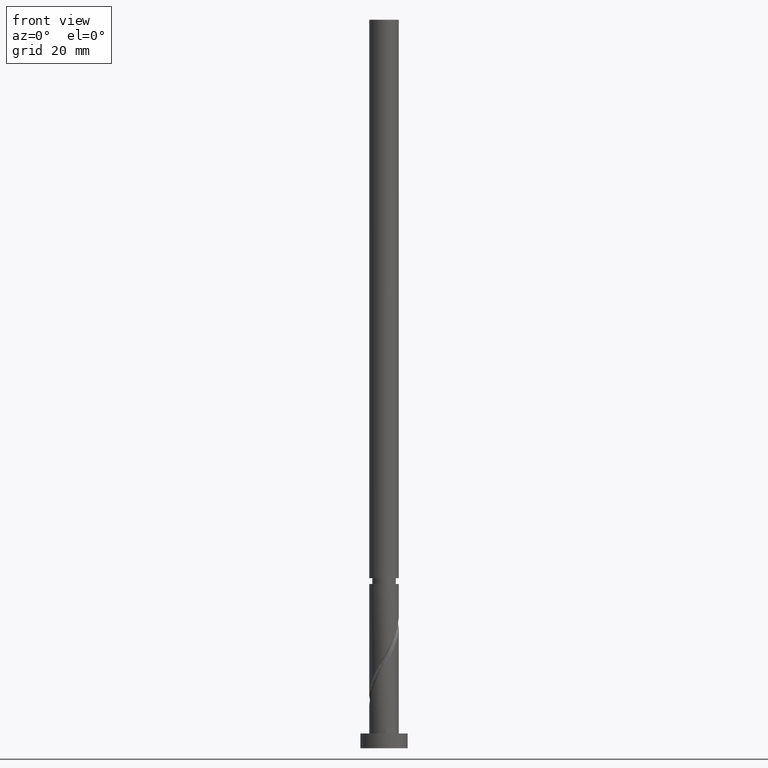
[diagram: clean part render]
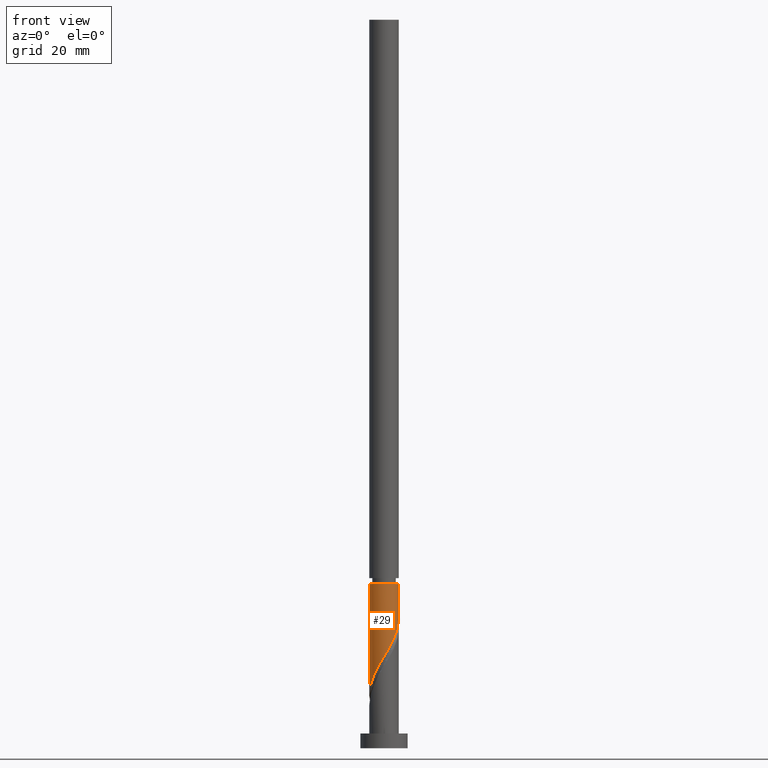
[diagram: same view with one face highlighted and labeled with its STEP entity id]
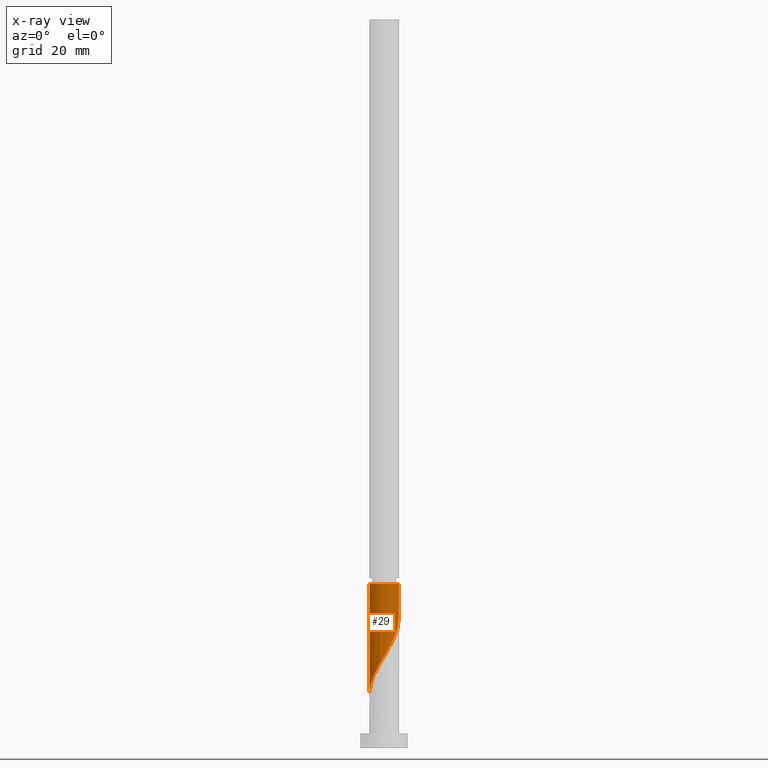
[diagram: x-ray of the same camera — body ghosted, the highlighted face saturated]
A machine part, front view. The second image highlights one B-rep face of the part: STEP entity #29.
The next image is the same camera in x-ray: the body ghosted, the highlighted face saturated — about 0% of this face is hidden behind the body in this view.
In plain terms, the highlighted cylindrical surface (edge-blend (fillet) strip) has radius 5 mm, axis along (-0, -0, -1).
Its self-contained STEP definition (entity closure, byte-faithful):
#1 = CARTESIAN_POINT ( 'NONE',  ( -4.999999999999998224, -2.320957782597394104E-15, 17.97929556936945872 ) ) ;
#15 = VERTEX_POINT ( 'NONE', #122 ) ;
#20 = LINE ( 'NONE', #447, #1578 ) ;
#29 = ADVANCED_FACE ( 'NONE', ( #1684 ), #260, .T. ) ;
#86 = CARTESIAN_POINT ( 'NONE',  ( -0.9949874371066192991, -4.899999999999999467, 29.42977849146339864 ) ) ;
#102 = CARTESIAN_POINT ( 'NONE',  ( 5.000000000000005329, 6.123233995736773185E-16, 55.67977849146339508 ) ) ;
#108 = CARTESIAN_POINT ( 'NONE',  ( -4.846456322308670295, -1.229577616888954728, 20.05477849146339864 ) ) ;
#122 = CARTESIAN_POINT ( 'NONE',  ( 4.999999999999997335, 1.910499010755411195E-15, 44.22929556936944806 ) ) ;
#194 = ORIENTED_EDGE ( 'NONE', *, *, #1432, .T. ) ;
#260 = CYLINDRICAL_SURFACE ( 'NONE', #559, 5.000000000000000000 ) ;
#385 = CARTESIAN_POINT ( 'NONE',  ( 3.210609744079810479, -3.833012532097927139, 36.92977849146340930 ) ) ;
#395 = CARTESIAN_POINT ( 'NONE',  ( 0.1203115516804407759, -4.998552303470699343, 31.30477849146340219 ) ) ;
#447 = CARTESIAN_POINT ( 'NONE',  ( 5.000000000000000000, 6.123233995736766282E-16, 247.0000000000000000 ) ) ;
#513 = CARTESIAN_POINT ( 'NONE',  ( 4.999999999999997335, 1.910499010755411195E-15, 44.22929556936944806 ) ) ;
#526 = CARTESIAN_POINT ( 'NONE',  ( 4.999999999999999112, -0.5025189076296046053, 43.39102449040583309 ) ) ;
#536 = CARTESIAN_POINT ( 'NONE',  ( 4.787891840297520574, -1.547084842617162836, 41.61727849146340219 ) ) ;
#551 = CARTESIAN_POINT ( 'NONE',  ( -5.000000000000005329, 0.000000000000000000, 55.67977849146339508 ) ) ;
#559 = AXIS2_PLACEMENT_3D ( 'NONE', #1725, #1240, #763 ) ;
#731 = CARTESIAN_POINT ( 'NONE',  ( -2.573702359565717135, -4.323590631524821148, 26.61727849146340219 ) ) ;
#760 = CARTESIAN_POINT ( 'NONE',  ( -4.707916197378418488, -1.775642098820953585, 20.99227849146340574 ) ) ;
#763 = DIRECTION ( 'NONE',  ( -1.000000000000000000, 0.000000000000000000, 0.000000000000000000 ) ) ;
#784 = CARTESIAN_POINT ( 'NONE',  ( -4.998552303470701119, -0.1203115516804409840, 18.17977849146340219 ) ) ;
#881 = CARTESIAN_POINT ( 'NONE',  ( 3.983038583135036337, -3.022483026463114619, 38.80477849146339508 ) ) ;
#932 = VERTEX_POINT ( 'NONE', #1 ) ;
#945 = AXIS2_PLACEMENT_3D ( 'NONE', #1361, #1326, #1535 ) ;
#956 = CARTESIAN_POINT ( 'NONE',  ( -5.000000000000000000, 0.000000000000000000, 247.0000000000000000 ) ) ;
#958 = EDGE_CURVE ( 'NONE', #2061, #15, #20, .T. ) ;
#966 = DIRECTION ( 'NONE',  ( -0.000000000000000000, -0.000000000000000000, -1.000000000000000000 ) ) ;
#1042 = CARTESIAN_POINT ( 'NONE',  ( -1.547084842617162836, -4.787891840297520574, 28.49227849146339508 ) ) ;
#1051 = CARTESIAN_POINT ( 'NONE',  ( 2.778732953414368101, -4.194761370835343506, 35.99227849146341640 ) ) ;
#1052 = EDGE_CURVE ( 'NONE', #1285, #932, #1452, .T. ) ;
#1076 = CARTESIAN_POINT ( 'NONE',  ( -4.999999999999998224, -2.320957782597394104E-15, 17.97929556936945872 ) ) ;
#1087 = CARTESIAN_POINT ( 'NONE',  ( -4.984996447238920325, -0.6835131349569566472, 19.11727849146340219 ) ) ;
#1098 = CARTESIAN_POINT ( 'NONE',  ( -3.833012532097926695, -3.210609744079810479, 23.80477849146339508 ) ) ;
#1106 = ORIENTED_EDGE ( 'NONE', *, *, #958, .F. ) ;
#1138 = EDGE_LOOP ( 'NONE', ( #1106, #194, #1723, #1232 ) ) ;
#1180 = CARTESIAN_POINT ( 'NONE',  ( 0.6835131349569565362, -4.984996447238920325, 32.24227849146339508 ) ) ;
#1191 = CARTESIAN_POINT ( 'NONE',  ( 4.555741235911170861, -2.060393601091440097, 40.67977849146340219 ) ) ;
#1202 = CARTESIAN_POINT ( 'NONE',  ( 4.323590631524821148, -2.573702359565717135, 39.74227849146339508 ) ) ;
#1209 =( BOUNDED_CURVE ( )  B_SPLINE_CURVE ( 2, ( #513, #526, #1336, #536, #1191, #1202, #881, #1862, #385, #1051, #2008, #1700, #1986, #1180, #395, #1831, #86, #1042, #1691, #731, #1371, #1918, #1098, #1268, #1249, #760, #108, #1087, #784, #1872, #1076 ),
 .UNSPECIFIED., .F., .T. ) 
 B_SPLINE_CURVE_WITH_KNOTS ( ( 3, 2, 2, 2, 2, 2, 2, 2, 2, 2, 2, 2, 2, 2, 2, 3 ),
 ( 0.3045303401299220281, 0.3125000000000000000, 0.3214285714285714524, 0.3303571428571428492, 0.3392857142857143016, 0.3482142857142856984, 0.3571428571428571508, 0.3660714285714285476, 0.3750000000000000000, 0.3839285714285714524, 0.3928571428571428492, 0.4017857142857143016, 0.4107142857142856984, 0.4196428571428571508, 0.4285714285714285476, 0.4295303401299220281 ),
 .UNSPECIFIED. ) 
 CURVE ( )  GEOMETRIC_REPRESENTATION_ITEM ( )  RATIONAL_B_SPLINE_CURVE ( ( 0.9079949616361735476, 0.9039886423360368184, 0.9090909090909032875, 0.9033747362665784930, 0.9090909090909032875, 0.9033747362665784930, 0.9090909090909032875, 0.9033747362665784930, 0.9090909090909032875, 0.9033747362665784930, 0.9090909090909032875, 0.9033747362665784930, 0.9090909090909032875, 0.9033747362665784930, 0.9090909090909032875, 0.9033747362665784930, 0.9090909090909032875, 0.9033747362665784930, 0.9090909090909032875, 0.9033747362665784930, 0.9090909090909032875, 0.9033747362665784930, 0.9090909090909032875, 0.9033747362665784930, 0.9090909090909032875, 0.9033747362665784930, 0.9090909090909032875, 0.9033747362665784930, 0.9090909090909032875, 0.9084770030214451841, 0.9079949616361735476 ) ) 
 REPRESENTATION_ITEM ( '' )  );
#1232 = ORIENTED_EDGE ( 'NONE', *, *, #1517, .F. ) ;
#1240 = DIRECTION ( 'NONE',  ( -0.000000000000000000, -0.000000000000000000, -1.000000000000000000 ) ) ;
#1249 = CARTESIAN_POINT ( 'NONE',  ( -4.451338784106880553, -2.277187526117661065, 21.92977849146339508 ) ) ;
#1268 = CARTESIAN_POINT ( 'NONE',  ( -4.194761370835343506, -2.778732953414368101, 22.86727849146339508 ) ) ;
#1285 = VERTEX_POINT ( 'NONE', #551 ) ;
#1326 = DIRECTION ( 'NONE',  ( -0.000000000000000000, -0.000000000000000000, -1.000000000000000000 ) ) ;
#1336 = CARTESIAN_POINT ( 'NONE',  ( 4.899999999999999467, -0.9949874371066195211, 42.55477849146340219 ) ) ;
#1361 = CARTESIAN_POINT ( 'NONE',  ( 0.000000000000000000, 0.000000000000000000, 55.67977849146339508 ) ) ;
#1371 = CARTESIAN_POINT ( 'NONE',  ( -3.022483026463114619, -3.983038583135037225, 25.67977849146339864 ) ) ;
#1432 = EDGE_CURVE ( 'NONE', #2061, #1285, #1648, .T. ) ;
#1452 = LINE ( 'NONE', #956, #1615 ) ;
#1517 = EDGE_CURVE ( 'NONE', #15, #932, #1209, .T. ) ;
#1535 = DIRECTION ( 'NONE',  ( -1.000000000000000000, 0.000000000000000000, 0.000000000000000000 ) ) ;
#1578 = VECTOR ( 'NONE', #1585, 1000.000000000000000 ) ;
#1585 = DIRECTION ( 'NONE',  ( -0.000000000000000000, -0.000000000000000000, -1.000000000000000000 ) ) ;
#1615 = VECTOR ( 'NONE', #966, 1000.000000000000000 ) ;
#1648 = CIRCLE ( 'NONE', #945, 5.000000000000006217 ) ;
#1684 = FACE_OUTER_BOUND ( 'NONE', #1138, .T. ) ;
#1691 = CARTESIAN_POINT ( 'NONE',  ( -2.060393601091439653, -4.555741235911170861, 27.55477849146339864 ) ) ;
#1700 = CARTESIAN_POINT ( 'NONE',  ( 1.775642098820953585, -4.707916197378418488, 34.11727849146340219 ) ) ;
#1723 = ORIENTED_EDGE ( 'NONE', *, *, #1052, .T. ) ;
#1725 = CARTESIAN_POINT ( 'NONE',  ( 0.000000000000000000, 0.000000000000000000, 247.0000000000000000 ) ) ;
#1831 = CARTESIAN_POINT ( 'NONE',  ( -0.4428900315960751510, -5.012108159702480137, 30.36727849146340219 ) ) ;
#1862 = CARTESIAN_POINT ( 'NONE',  ( 3.642486534745253302, -3.471263693360512992, 37.86727849146340219 ) ) ;
#1872 = CARTESIAN_POINT ( 'NONE',  ( -4.999999999999999112, -0.06016448583195424527, 18.07965825759454148 ) ) ;
#1918 = CARTESIAN_POINT ( 'NONE',  ( -3.471263693360512992, -3.642486534745253302, 24.74227849146340574 ) ) ;
#1986 = CARTESIAN_POINT ( 'NONE',  ( 1.229577616888954728, -4.846456322308670295, 33.17977849146340219 ) ) ;
#2008 = CARTESIAN_POINT ( 'NONE',  ( 2.277187526117660621, -4.451338784106880553, 35.05477849146340219 ) ) ;
#2061 = VERTEX_POINT ( 'NONE', #102 ) ;